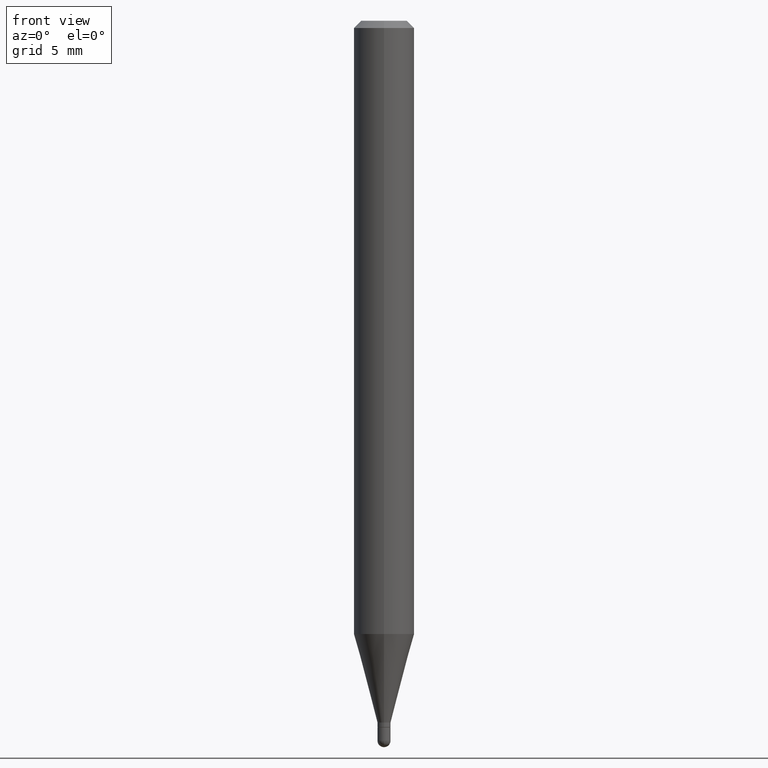
[diagram: clean part render]
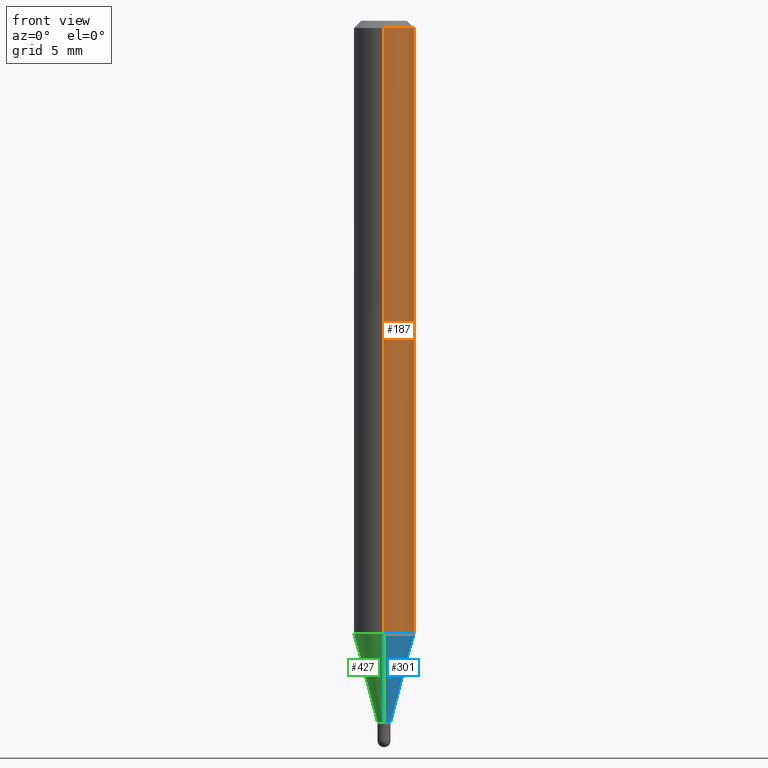
[diagram: same view with three faces highlighted in distinct colors, each labeled with its STEP entity id]
A machine part, front view with three faces highlighted in distinct colors.
Their STEP definitions:

[orange] entity #187 — the highlighted cylindrical surface (edge-blend (fillet) strip) has radius 1.5875 mm, axis along (-0, 0, 1).
#9 = VERTEX_POINT ( 'NONE', #373 ) ;
#51 = ORIENTED_EDGE ( 'NONE', *, *, #233, .F. ) ;
#58 = CIRCLE ( 'NONE', #69, 0.06250000000000000000 ) ;
#63 = CARTESIAN_POINT ( 'NONE',  ( 3.096280969527570590E-29, -4.420666488213768000E-15, -1.266129510429125693 ) ) ;
#69 = AXIS2_PLACEMENT_3D ( 'NONE', #135, #85, #165 ) ;
#80 = AXIS2_PLACEMENT_3D ( 'NONE', #63, #182, #147 ) ;
#85 = DIRECTION ( 'NONE',  ( -2.445469396316461036E-29, 3.491480493741500613E-15, 1.000000000000000000 ) ) ;
#105 = DIRECTION ( 'NONE',  ( -2.445469396316461036E-29, 3.491480493741500613E-15, 1.000000000000000000 ) ) ;
#120 = VECTOR ( 'NONE', #149, 39.37007874015748143 ) ;
#135 = CARTESIAN_POINT ( 'NONE',  ( 3.668204094474693989E-31, -5.237220740612253655E-17, -0.01500000000000000812 ) ) ;
#147 = DIRECTION ( 'NONE',  ( -6.982962677686265922E-15, -1.000000000000000000, 4.370956789862821150E-15 ) ) ;
#149 = DIRECTION ( 'NONE',  ( -2.445469396316461036E-29, 3.491480493741500613E-15, 1.000000000000000000 ) ) ;
#162 = CIRCLE ( 'NONE', #80, 0.06250000000000000000 ) ;
#165 = DIRECTION ( 'NONE',  ( -6.982962677686265922E-15, -1.000000000000000000, 3.483106191921935554E-15 ) ) ;
#180 = CARTESIAN_POINT ( 'NONE',  ( 4.440892098500625669E-16, 0.06250000000000000000, -2.182175308588437883E-16 ) ) ;
#182 = DIRECTION ( 'NONE',  ( -2.445469396316461036E-29, 3.491480493741500613E-15, 1.000000000000000000 ) ) ;
#187 = ADVANCED_FACE ( 'NONE', ( #303 ), #411, .T. ) ;
#189 = DIRECTION ( 'NONE',  ( -2.445469396316461036E-29, 3.491480493741500613E-15, 1.000000000000000000 ) ) ;
#195 = EDGE_CURVE ( 'NONE', #210, #9, #162, .T. ) ;
#207 = ORIENTED_EDGE ( 'NONE', *, *, #195, .T. ) ;
#210 = VERTEX_POINT ( 'NONE', #374 ) ;
#215 = VERTEX_POINT ( 'NONE', #219 ) ;
#219 = CARTESIAN_POINT ( 'NONE',  ( -4.364351673553912750E-16, -0.06250000000000005551, -0.01499999999999979128 ) ) ;
#233 = EDGE_CURVE ( 'NONE', #210, #215, #382, .T. ) ;
#252 = ORIENTED_EDGE ( 'NONE', *, *, #290, .T. ) ;
#290 = EDGE_CURVE ( 'NONE', #9, #315, #496, .T. ) ;
#303 = FACE_OUTER_BOUND ( 'NONE', #421, .T. ) ;
#315 = VERTEX_POINT ( 'NONE', #346 ) ;
#346 = CARTESIAN_POINT ( 'NONE',  ( 4.440892098500936776E-16, 0.06249999999999993755, -0.01500000000000022669 ) ) ;
#370 = ORIENTED_EDGE ( 'NONE', *, *, #485, .F. ) ;
#373 = CARTESIAN_POINT ( 'NONE',  ( 4.440892098500933817E-16, 0.06249999999999557992, -1.266129510429125915 ) ) ;
#374 = CARTESIAN_POINT ( 'NONE',  ( -4.364351673553607559E-16, -0.06250000000000442701, -1.266129510429125471 ) ) ;
#382 = LINE ( 'NONE', #451, #415 ) ;
#384 = AXIS2_PLACEMENT_3D ( 'NONE', #419, #189, #420 ) ;
#411 = CYLINDRICAL_SURFACE ( 'NONE', #384, 0.06250000000000000000 ) ;
#415 = VECTOR ( 'NONE', #105, 39.37007874015748143 ) ;
#419 = CARTESIAN_POINT ( 'NONE',  ( 0.000000000000000000, 0.000000000000000000, 0.000000000000000000 ) ) ;
#420 = DIRECTION ( 'NONE',  ( -6.982962677686265922E-15, -1.000000000000000000, 3.491480493741500613E-15 ) ) ;
#421 = EDGE_LOOP ( 'NONE', ( #207, #252, #370, #51 ) ) ;
#451 = CARTESIAN_POINT ( 'NONE',  ( -4.364351673553916201E-16, -0.06250000000000000000, 2.182175308588437883E-16 ) ) ;
#485 = EDGE_CURVE ( 'NONE', #215, #315, #58, .T. ) ;
#496 = LINE ( 'NONE', #180, #120 ) ;

[blue] entity #301 — the highlighted conical surface has half-angle 15 deg.
#9 = VERTEX_POINT ( 'NONE', #373 ) ;
#18 = VERTEX_POINT ( 'NONE', #417 ) ;
#25 = CARTESIAN_POINT ( 'NONE',  ( 2.700062395888710975E-16, 0.01349999999999486507, -1.449000000000000066 ) ) ;
#50 = DIRECTION ( 'NONE',  ( -2.445469396316461036E-29, 3.491480493741500613E-15, 1.000000000000000000 ) ) ;
#55 = EDGE_CURVE ( 'NONE', #18, #220, #412, .T. ) ;
#63 = CARTESIAN_POINT ( 'NONE',  ( 3.096280969527570590E-29, -4.420666488213768000E-15, -1.266129510429125693 ) ) ;
#74 = DIRECTION ( 'NONE',  ( 1.839019923739603471E-15, 0.2588190451025254024, 0.9659258262890670910 ) ) ;
#76 = VECTOR ( 'NONE', #489, 39.37007874015748854 ) ;
#78 = LINE ( 'NONE', #503, #192 ) ;
#80 = AXIS2_PLACEMENT_3D ( 'NONE', #63, #182, #147 ) ;
#110 = ORIENTED_EDGE ( 'NONE', *, *, #203, .F. ) ;
#112 = DIRECTION ( 'NONE',  ( -6.982962677686265922E-15, -1.000000000000000000, 0.000000000000000000 ) ) ;
#115 = AXIS2_PLACEMENT_3D ( 'NONE', #309, #338, #112 ) ;
#139 = FACE_OUTER_BOUND ( 'NONE', #284, .T. ) ;
#145 = CONICAL_SURFACE ( 'NONE', #115, 0.01349999999999992352, 0.2617993877991507401 ) ;
#147 = DIRECTION ( 'NONE',  ( -6.982962677686265922E-15, -1.000000000000000000, 4.370956789862821150E-15 ) ) ;
#162 = CIRCLE ( 'NONE', #80, 0.06250000000000000000 ) ;
#182 = DIRECTION ( 'NONE',  ( -2.445469396316461036E-29, 3.491480493741500613E-15, 1.000000000000000000 ) ) ;
#192 = VECTOR ( 'NONE', #74, 39.37007874015748143 ) ;
#195 = EDGE_CURVE ( 'NONE', #210, #9, #162, .T. ) ;
#203 = EDGE_CURVE ( 'NONE', #18, #210, #225, .T. ) ;
#210 = VERTEX_POINT ( 'NONE', #374 ) ;
#220 = VERTEX_POINT ( 'NONE', #25 ) ;
#225 = LINE ( 'NONE', #271, #76 ) ;
#230 = ORIENTED_EDGE ( 'NONE', *, *, #355, .T. ) ;
#271 = CARTESIAN_POINT ( 'NONE',  ( -9.426999614872861522E-17, -0.01350000000000498197, -1.449000000000000066 ) ) ;
#284 = EDGE_LOOP ( 'NONE', ( #479, #230, #455, #110 ) ) ;
#301 = ADVANCED_FACE ( 'NONE', ( #139 ), #145, .T. ) ;
#304 = AXIS2_PLACEMENT_3D ( 'NONE', #443, #50, #341 ) ;
#309 = CARTESIAN_POINT ( 'NONE',  ( 3.543485155262552172E-29, -5.059155235431435940E-15, -1.449000000000000066 ) ) ;
#338 = DIRECTION ( 'NONE',  ( -2.445469396316461036E-29, 3.491480493741500613E-15, 1.000000000000000000 ) ) ;
#341 = DIRECTION ( 'NONE',  ( -6.982962677686265922E-15, -1.000000000000000000, 0.000000000000000000 ) ) ;
#355 = EDGE_CURVE ( 'NONE', #220, #9, #78, .T. ) ;
#373 = CARTESIAN_POINT ( 'NONE',  ( 4.440892098500933817E-16, 0.06249999999999557992, -1.266129510429125915 ) ) ;
#374 = CARTESIAN_POINT ( 'NONE',  ( -4.364351673553607559E-16, -0.06250000000000442701, -1.266129510429125471 ) ) ;
#412 = CIRCLE ( 'NONE', #304, 0.01349999999999992352 ) ;
#417 = CARTESIAN_POINT ( 'NONE',  ( -9.426999614872861522E-17, -0.01350000000000498197, -1.449000000000000066 ) ) ;
#443 = CARTESIAN_POINT ( 'NONE',  ( 3.543485155262552172E-29, -5.059155235431435940E-15, -1.449000000000000066 ) ) ;
#455 = ORIENTED_EDGE ( 'NONE', *, *, #195, .F. ) ;
#479 = ORIENTED_EDGE ( 'NONE', *, *, #55, .T. ) ;
#489 = DIRECTION ( 'NONE',  ( -1.807323732225332900E-15, -0.2588190451025185745, 0.9659258262890687563 ) ) ;
#503 = CARTESIAN_POINT ( 'NONE',  ( 9.592326932764840645E-17, 0.01349999999999486507, -1.449000000000000066 ) ) ;

[green] entity #427 — the highlighted conical surface has half-angle 15 deg.
#9 = VERTEX_POINT ( 'NONE', #373 ) ;
#18 = VERTEX_POINT ( 'NONE', #417 ) ;
#25 = CARTESIAN_POINT ( 'NONE',  ( 2.700062395888710975E-16, 0.01349999999999486507, -1.449000000000000066 ) ) ;
#39 = DIRECTION ( 'NONE',  ( -2.445469396316461036E-29, 3.491480493741500613E-15, 1.000000000000000000 ) ) ;
#74 = DIRECTION ( 'NONE',  ( 1.839019923739603471E-15, 0.2588190451025254024, 0.9659258262890670910 ) ) ;
#76 = VECTOR ( 'NONE', #489, 39.37007874015748854 ) ;
#78 = LINE ( 'NONE', #503, #192 ) ;
#81 = EDGE_CURVE ( 'NONE', #9, #210, #144, .T. ) ;
#100 = CARTESIAN_POINT ( 'NONE',  ( 3.543485155262552172E-29, -5.059155235431435940E-15, -1.449000000000000066 ) ) ;
#128 = EDGE_LOOP ( 'NONE', ( #486, #164, #264, #444 ) ) ;
#144 = CIRCLE ( 'NONE', #506, 0.06250000000000000000 ) ;
#163 = CONICAL_SURFACE ( 'NONE', #317, 0.01349999999999992352, 0.2617993877991507401 ) ;
#164 = ORIENTED_EDGE ( 'NONE', *, *, #319, .T. ) ;
#192 = VECTOR ( 'NONE', #74, 39.37007874015748143 ) ;
#199 = DIRECTION ( 'NONE',  ( -2.445469396316461036E-29, 3.491480493741500613E-15, 1.000000000000000000 ) ) ;
#202 = DIRECTION ( 'NONE',  ( -6.982962677686265922E-15, -1.000000000000000000, 4.370956789862821150E-15 ) ) ;
#203 = EDGE_CURVE ( 'NONE', #18, #210, #225, .T. ) ;
#210 = VERTEX_POINT ( 'NONE', #374 ) ;
#220 = VERTEX_POINT ( 'NONE', #25 ) ;
#225 = LINE ( 'NONE', #271, #76 ) ;
#241 = CARTESIAN_POINT ( 'NONE',  ( 3.096280969527570590E-29, -4.420666488213768000E-15, -1.266129510429125693 ) ) ;
#261 = DIRECTION ( 'NONE',  ( -2.445469396316461036E-29, 3.491480493741500613E-15, 1.000000000000000000 ) ) ;
#264 = ORIENTED_EDGE ( 'NONE', *, *, #203, .T. ) ;
#271 = CARTESIAN_POINT ( 'NONE',  ( -9.426999614872861522E-17, -0.01350000000000498197, -1.449000000000000066 ) ) ;
#312 = AXIS2_PLACEMENT_3D ( 'NONE', #100, #261, #505 ) ;
#317 = AXIS2_PLACEMENT_3D ( 'NONE', #477, #199, #407 ) ;
#319 = EDGE_CURVE ( 'NONE', #220, #18, #385, .T. ) ;
#355 = EDGE_CURVE ( 'NONE', #220, #9, #78, .T. ) ;
#357 = FACE_OUTER_BOUND ( 'NONE', #128, .T. ) ;
#373 = CARTESIAN_POINT ( 'NONE',  ( 4.440892098500933817E-16, 0.06249999999999557992, -1.266129510429125915 ) ) ;
#374 = CARTESIAN_POINT ( 'NONE',  ( -4.364351673553607559E-16, -0.06250000000000442701, -1.266129510429125471 ) ) ;
#385 = CIRCLE ( 'NONE', #312, 0.01349999999999992352 ) ;
#407 = DIRECTION ( 'NONE',  ( -6.982962677686265922E-15, -1.000000000000000000, 0.000000000000000000 ) ) ;
#417 = CARTESIAN_POINT ( 'NONE',  ( -9.426999614872861522E-17, -0.01350000000000498197, -1.449000000000000066 ) ) ;
#427 = ADVANCED_FACE ( 'NONE', ( #357 ), #163, .T. ) ;
#444 = ORIENTED_EDGE ( 'NONE', *, *, #81, .F. ) ;
#477 = CARTESIAN_POINT ( 'NONE',  ( 3.543485155262552172E-29, -5.059155235431435940E-15, -1.449000000000000066 ) ) ;
#486 = ORIENTED_EDGE ( 'NONE', *, *, #355, .F. ) ;
#489 = DIRECTION ( 'NONE',  ( -1.807323732225332900E-15, -0.2588190451025185745, 0.9659258262890687563 ) ) ;
#503 = CARTESIAN_POINT ( 'NONE',  ( 9.592326932764840645E-17, 0.01349999999999486507, -1.449000000000000066 ) ) ;
#505 = DIRECTION ( 'NONE',  ( -6.982962677686265922E-15, -1.000000000000000000, 0.000000000000000000 ) ) ;
#506 = AXIS2_PLACEMENT_3D ( 'NONE', #241, #39, #202 ) ;